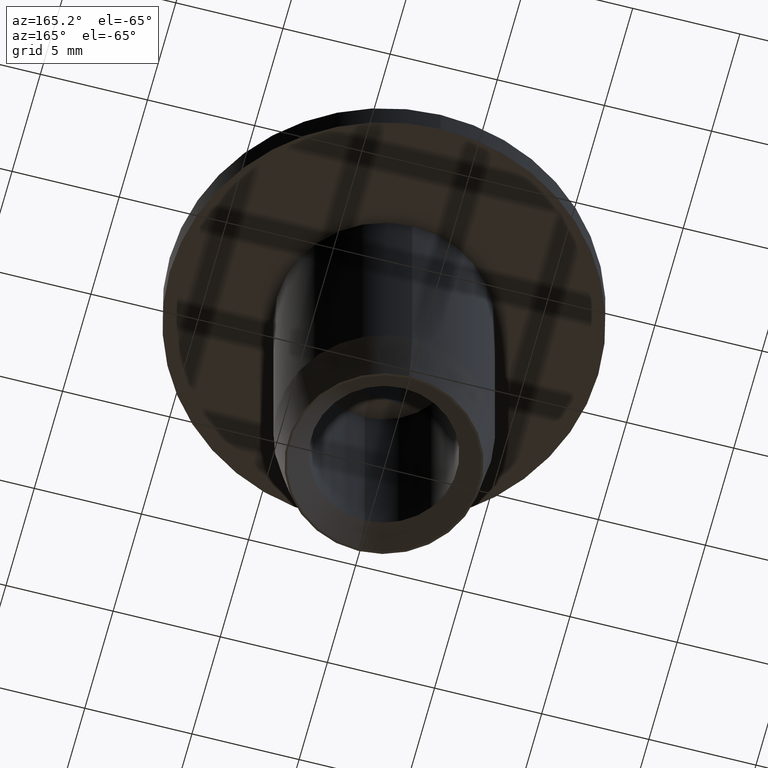
[diagram: clean part render]
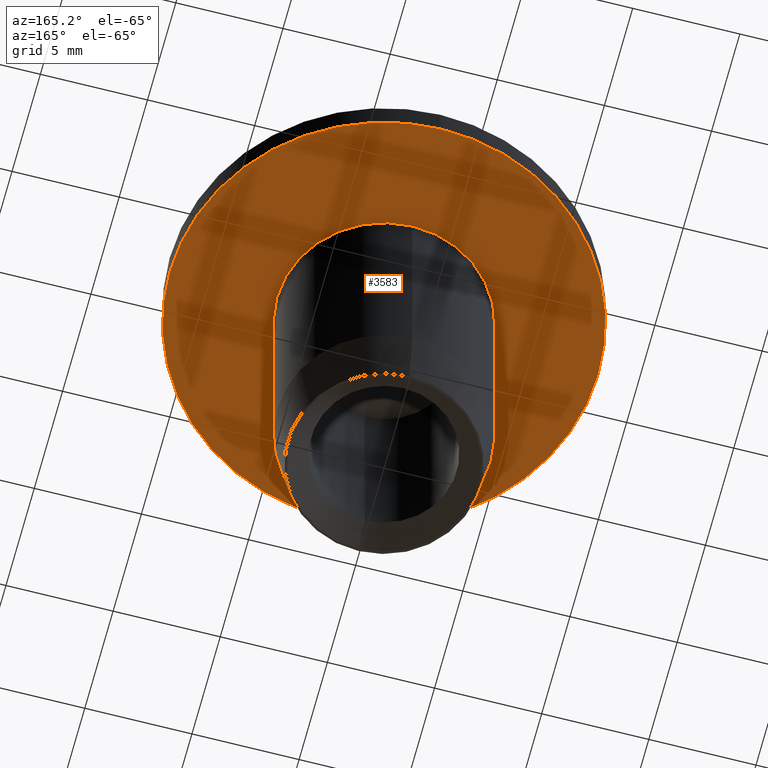
[diagram: same view with one face highlighted and labeled with its STEP entity id]
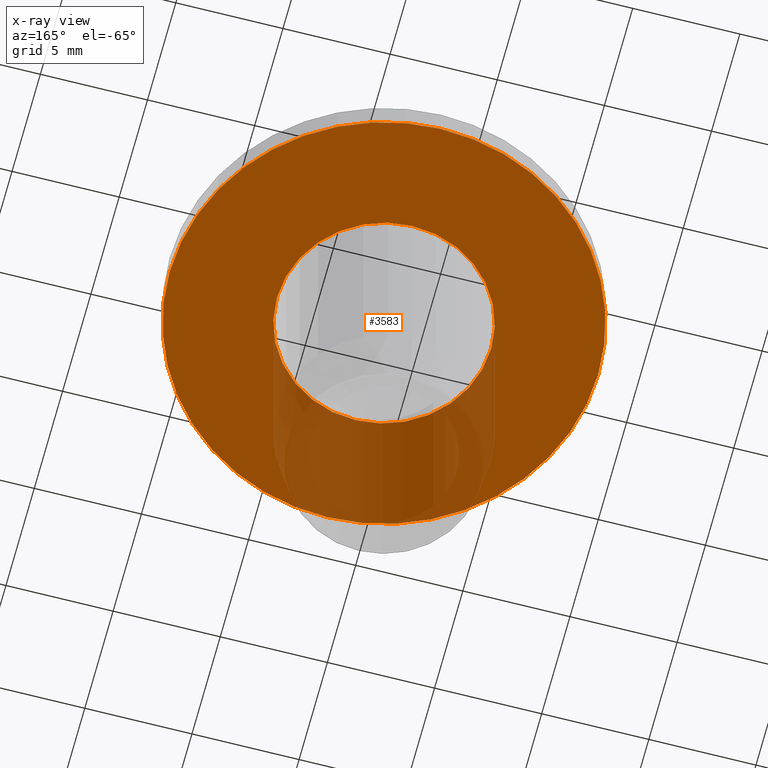
[diagram: x-ray of the same camera — body ghosted, the highlighted face saturated]
A machine part, auxiliary view. The second image highlights one B-rep face of the part: STEP entity #3583.
The next image is the same camera in x-ray: the body ghosted, the highlighted face saturated — about 23% of this face is hidden behind the body in this view.
In plain terms, the highlighted planar face has unit normal (-0, 0, -1).
Its self-contained STEP definition (entity closure, byte-faithful):
#8 = EDGE_CURVE ( 'NONE', #16392, #16571, #15345, .T. ) ;
#69 = AXIS2_PLACEMENT_3D ( 'NONE', #2088, #5972, #8737 ) ;
#229 = CARTESIAN_POINT ( 'NONE',  ( 0.0000000000000000000, -2.469647665687786000E-016, 6.500000000000000900 ) ) ;
#490 = EDGE_LOOP ( 'NONE', ( #7261, #10983 ) ) ;
#1007 = CARTESIAN_POINT ( 'NONE',  ( 0.0000000000000000000, -2.469647665687786000E-016, 6.500000000000000900 ) ) ;
#1720 = DIRECTION ( 'NONE',  ( -0.0000000000000000000, 2.500348904555543500E-016, -1.000000000000000000 ) ) ;
#2088 = CARTESIAN_POINT ( 'NONE',  ( 0.0000000000000000000, -2.469647665687786000E-016, 6.500000000000000900 ) ) ;
#2447 = DIRECTION ( 'NONE',  ( 0.0000000000000000000, 1.000000000000000000, 1.734723475976805400E-016 ) ) ;
#2802 = EDGE_LOOP ( 'NONE', ( #6248, #13756 ) ) ;
#3339 = AXIS2_PLACEMENT_3D ( 'NONE', #4111, #6796, #13433 ) ;
#3583 = ADVANCED_FACE ( 'NONE', ( #14467, #6636 ), #11996, .T. ) ;
#3622 = DIRECTION ( 'NONE',  ( -0.0000000000000000000, 2.500348904555543500E-016, -1.000000000000000000 ) ) ;
#4111 = CARTESIAN_POINT ( 'NONE',  ( 0.0000000000000000000, -2.469647665687786000E-016, 6.500000000000000900 ) ) ;
#5649 = VERTEX_POINT ( 'NONE', #9445 ) ;
#5933 = CIRCLE ( 'NONE', #11715, 10.00000000000000000 ) ;
#5972 = DIRECTION ( 'NONE',  ( -0.0000000000000000000, 2.500348904555543500E-016, -1.000000000000000000 ) ) ;
#6248 = ORIENTED_EDGE ( 'NONE', *, *, #14792, .F. ) ;
#6474 = AXIS2_PLACEMENT_3D ( 'NONE', #8202, #9411, #12174 ) ;
#6636 = FACE_BOUND ( 'NONE', #2802, .T. ) ;
#6796 = DIRECTION ( 'NONE',  ( -0.0000000000000000000, 2.500348904555543500E-016, -1.000000000000000000 ) ) ;
#6835 = CIRCLE ( 'NONE', #16870, 5.000000000000005300 ) ;
#6984 = CARTESIAN_POINT ( 'NONE',  ( 0.0000000000000000000, 5.000000000000005300, 6.500000000000001800 ) ) ;
#7124 = EDGE_CURVE ( 'NONE', #5649, #16374, #6835, .T. ) ;
#7261 = ORIENTED_EDGE ( 'NONE', *, *, #12834, .T. ) ;
#7770 = CARTESIAN_POINT ( 'NONE',  ( 1.224646799147353300E-015, -10.00000000000000000, 6.499999999999998200 ) ) ;
#8202 = CARTESIAN_POINT ( 'NONE',  ( 0.0000000000000000000, 10.00000000000000000, 6.500000000000003600 ) ) ;
#8737 = DIRECTION ( 'NONE',  ( 0.0000000000000000000, 1.000000000000000000, 2.602085213965210600E-016 ) ) ;
#9411 = DIRECTION ( 'NONE',  ( -0.0000000000000000000, 2.500348904555543500E-016, -1.000000000000000000 ) ) ;
#9445 = CARTESIAN_POINT ( 'NONE',  ( 6.123233995736775200E-016, -5.000000000000005300, 6.500000000000000000 ) ) ;
#10983 = ORIENTED_EDGE ( 'NONE', *, *, #8, .T. ) ;
#11715 = AXIS2_PLACEMENT_3D ( 'NONE', #229, #1720, #16133 ) ;
#11996 = PLANE ( 'NONE',  #6474 ) ;
#12174 = DIRECTION ( 'NONE',  ( 0.0000000000000000000, 1.000000000000000000, 2.500348904555543500E-016 ) ) ;
#12834 = EDGE_CURVE ( 'NONE', #16571, #16392, #5933, .T. ) ;
#13433 = DIRECTION ( 'NONE',  ( 0.0000000000000000000, 1.000000000000000000, 1.734723475976805400E-016 ) ) ;
#13756 = ORIENTED_EDGE ( 'NONE', *, *, #7124, .F. ) ;
#13834 = CIRCLE ( 'NONE', #3339, 5.000000000000005300 ) ;
#14467 = FACE_OUTER_BOUND ( 'NONE', #490, .T. ) ;
#14792 = EDGE_CURVE ( 'NONE', #16374, #5649, #13834, .T. ) ;
#15345 = CIRCLE ( 'NONE', #69, 10.00000000000000000 ) ;
#16018 = CARTESIAN_POINT ( 'NONE',  ( 0.0000000000000000000, 10.00000000000000000, 6.500000000000003600 ) ) ;
#16133 = DIRECTION ( 'NONE',  ( 0.0000000000000000000, 1.000000000000000000, 2.602085213965210600E-016 ) ) ;
#16374 = VERTEX_POINT ( 'NONE', #6984 ) ;
#16392 = VERTEX_POINT ( 'NONE', #7770 ) ;
#16571 = VERTEX_POINT ( 'NONE', #16018 ) ;
#16870 = AXIS2_PLACEMENT_3D ( 'NONE', #1007, #3622, #2447 ) ;